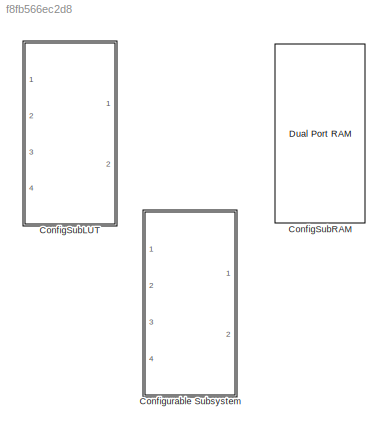
MODEL slx_f8fb566ec2d8
KIND library
CONFIG AbsTol = auto
CONFIG FixedStep = auto
CONFIG MaxStep = auto
CONFIG MinStep = auto
CONFIG RelTol = 1e-3
CONFIG SampleTimeConstraint = Unconstrained
CONFIG Solver = ode45
CONFIG SolverMode = Auto
CONFIG SolverName = ode45
CONFIG StartTime = 0.0
CONFIG StopTime = 10.0
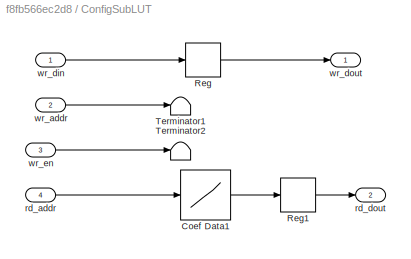
BLOCK [SubSystem] ConfigSubLUT
  Ports = [4, 2]
  RequestExecContextInheritance = off
  Variant = off
BLOCK [Lookup] ConfigSubLUT/Coef Data1
  InputValues = [0:NTaps-1]
  LookUpMeth = Use Input Nearest
  OutDataTypeStr = fixdt(1,16,15)
  SaturateOnIntegerOverflow = off
  Table = Numerator
BLOCK [Delay] ConfigSubLUT/Reg
  DelayLength = 1
  InputPortMap = u0
  InputProcessing = Inherited
  Ports = [1, 1]
BLOCK [Delay] ConfigSubLUT/Reg1
  DelayLength = 1
  InputPortMap = u0
  InputProcessing = Inherited
  Ports = [1, 1]
BLOCK [Terminator] ConfigSubLUT/Terminator1
BLOCK [Terminator] ConfigSubLUT/Terminator2
BLOCK [Inport] ConfigSubLUT/rd_addr
  IconDisplay = Port number
  OutDataTypeStr = fixdt('ufix7')
  Port = 4
  PortDimensions = 1
  SampleTime = [7.8125000000000002e-005,0]
  SamplingMode = Sample based
  SignalType = real
BLOCK [Outport] ConfigSubLUT/rd_dout
  IconDisplay = Port number
  OutDataTypeStr = fixdt('sfix16_En15')
  Port = 2
  PortDimensions = 1
  SampleTime = [7.8125000000000002e-005,0]
  SamplingMode = Sample based
  SignalType = real
BLOCK [Inport] ConfigSubLUT/wr_addr
  IconDisplay = Port number
  OutDataTypeStr = fixdt('ufix7')
  Port = 2
  PortDimensions = 1
  SampleTime = [7.8125000000000002e-005,0]
  SamplingMode = Sample based
  SignalType = real
BLOCK [Inport] ConfigSubLUT/wr_din
  IconDisplay = Port number
  OutDataTypeStr = fixdt('sfix16_En15')
  PortDimensions = 1
  SampleTime = [7.8125000000000002e-005,0]
  SamplingMode = Sample based
  SignalType = real
BLOCK [Outport] ConfigSubLUT/wr_dout
  IconDisplay = Port number
  OutDataTypeStr = fixdt('sfix16_En15')
  PortDimensions = 1
  SampleTime = [7.8125000000000002e-005,0]
  SamplingMode = Sample based
  SignalType = real
BLOCK [Inport] ConfigSubLUT/wr_en
  IconDisplay = Port number
  OutDataTypeStr = boolean
  Port = 3
  PortDimensions = 1
  SampleTime = [7.8125000000000002e-005,0]
  SamplingMode = Sample based
  SignalType = real
BLOCK [Reference] ConfigSubRAM  REF=hdlsllib/HDL Operations/Dual Port RAM
  Ports = [4, 2]
  SourceBlock = hdlsllib/HDL Operations/Dual Port RAM
  SourceType = Dual-port RAM
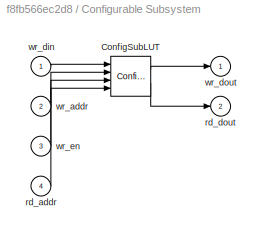
BLOCK [SubSystem] Configurable Subsystem
  BlockChoice = ConfigSubLUT
  MemberBlocks = ConfigSubLUT,ConfigSubRAM
  Ports = [4, 2]
  RequestExecContextInheritance = off
  TemplateBlock = self
  Variant = off
BLOCK [Reference] Configurable Subsystem/ConfigSubLUT  REF=ad_configsub/ConfigSubLUT  (lib defined in slx_f8fb566ec2d8)
  Ports = [4, 2]
  SourceBlock = ad_configsub/ConfigSubLUT
  SourceType = SubSystem
BLOCK [Inport] Configurable Subsystem/rd_addr
  IconDisplay = Port number
  Port = 4
BLOCK [Outport] Configurable Subsystem/rd_dout
  IconDisplay = Port number
  Port = 2
BLOCK [Inport] Configurable Subsystem/wr_addr
  IconDisplay = Port number
  Port = 2
BLOCK [Inport] Configurable Subsystem/wr_din
  IconDisplay = Port number
BLOCK [Outport] Configurable Subsystem/wr_dout
  IconDisplay = Port number
BLOCK [Inport] Configurable Subsystem/wr_en
  IconDisplay = Port number
  Port = 3
LINE ConfigSubLUT/Coef Data1:1 -> ConfigSubLUT/Reg1:1
LINE ConfigSubLUT/Reg1:1 -> ConfigSubLUT/rd_dout:1
LINE ConfigSubLUT/Reg:1 -> ConfigSubLUT/wr_dout:1
LINE ConfigSubLUT/rd_addr:1 -> ConfigSubLUT/Coef Data1:1
LINE ConfigSubLUT/wr_addr:1 -> ConfigSubLUT/Terminator1:1
LINE ConfigSubLUT/wr_din:1 -> ConfigSubLUT/Reg:1
LINE ConfigSubLUT/wr_en:1 -> ConfigSubLUT/Terminator2:1
LINE Configurable Subsystem/ConfigSubLUT:1 -> Configurable Subsystem/wr_dout:1
LINE Configurable Subsystem/ConfigSubLUT:2 -> Configurable Subsystem/rd_dout:1
LINE Configurable Subsystem/rd_addr:1 -> Configurable Subsystem/ConfigSubLUT:4
LINE Configurable Subsystem/wr_addr:1 -> Configurable Subsystem/ConfigSubLUT:2
LINE Configurable Subsystem/wr_din:1 -> Configurable Subsystem/ConfigSubLUT:1
LINE Configurable Subsystem/wr_en:1 -> Configurable Subsystem/ConfigSubLUT:3
